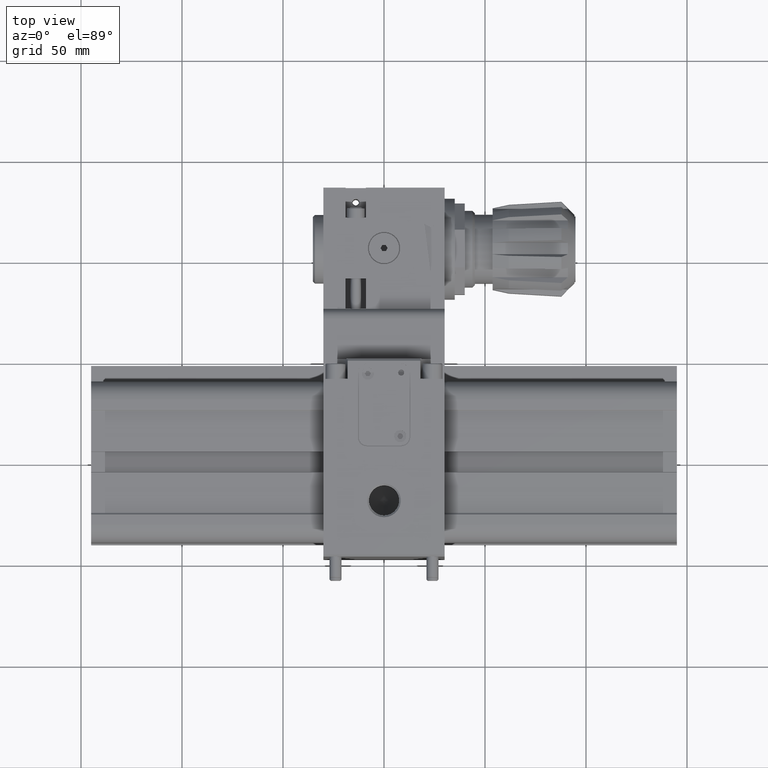
[diagram: clean part render]
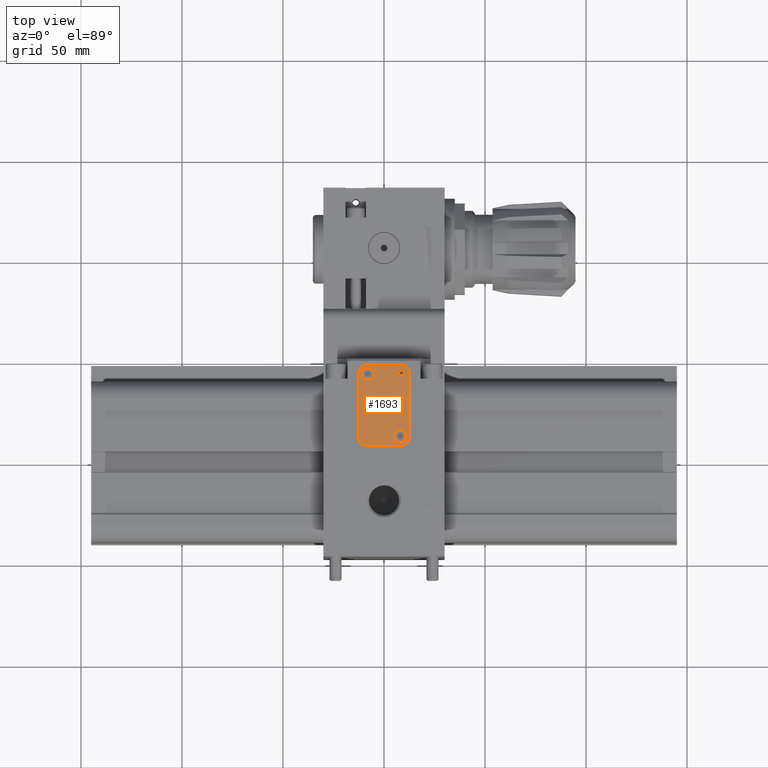
[diagram: same view with one face highlighted and labeled with its STEP entity id]
A machine part, top view. The second image highlights one B-rep face of the part: STEP entity #1693.
In plain terms, the highlighted planar face has unit normal (0, 0, -1).
Its self-contained STEP definition (entity closure, byte-faithful):
#1693 = ADVANCED_FACE( '', ( #3714, #3715, #3716, #3717 ), #3718, .F. );
#3714 = FACE_BOUND( '', #6097, .T. );
#3715 = FACE_BOUND( '', #6098, .T. );
#3716 = FACE_OUTER_BOUND( '', #6099, .T. );
#3717 = FACE_BOUND( '', #6100, .T. );
#3718 = PLANE( '', #6101 );
#6097 = EDGE_LOOP( '', ( #10482 ) );
#6098 = EDGE_LOOP( '', ( #10483 ) );
#6099 = EDGE_LOOP( '', ( #10484, #10485, #10486, #10487, #10488, #10489, #10490, #10491 ) );
#6100 = EDGE_LOOP( '', ( #10492 ) );
#6101 = AXIS2_PLACEMENT_3D( '', #10493, #10494, #10495 );
#10482 = ORIENTED_EDGE( '', *, *, #13351, .F. );
#10483 = ORIENTED_EDGE( '', *, *, #13521, .F. );
#10484 = ORIENTED_EDGE( '', *, *, #14868, .T. );
#10485 = ORIENTED_EDGE( '', *, *, #14339, .T. );
#10486 = ORIENTED_EDGE( '', *, *, #13329, .T. );
#10487 = ORIENTED_EDGE( '', *, *, #14869, .T. );
#10488 = ORIENTED_EDGE( '', *, *, #14139, .T. );
#10489 = ORIENTED_EDGE( '', *, *, #14870, .T. );
#10490 = ORIENTED_EDGE( '', *, *, #14134, .T. );
#10491 = ORIENTED_EDGE( '', *, *, #14694, .T. );
#10492 = ORIENTED_EDGE( '', *, *, #14871, .F. );
#10493 = CARTESIAN_POINT( '', ( 30.0000000000000, 50.0000000000000, 49.0000000000000 ) );
#10494 = DIRECTION( '', ( 0.000000000000000, 0.000000000000000, -1.00000000000000 ) );
#10495 = DIRECTION( '', ( -1.00000000000000, 0.000000000000000, 0.000000000000000 ) );
#13329 = EDGE_CURVE( '', #15748, #15749, #15750, .T. );
#13351 = EDGE_CURVE( '', #15786, #15786, #15787, .T. );
#13521 = EDGE_CURVE( '', #16082, #16082, #16083, .T. );
#14134 = EDGE_CURVE( '', #17089, #17090, #17091, .T. );
#14139 = EDGE_CURVE( '', #17098, #17099, #17100, .T. );
#14339 = EDGE_CURVE( '', #17402, #15748, #17403, .T. );
#14694 = EDGE_CURVE( '', #17090, #17918, #17919, .T. );
#14868 = EDGE_CURVE( '', #17918, #17402, #18183, .T. );
#14869 = EDGE_CURVE( '', #15749, #17098, #18184, .T. );
#14870 = EDGE_CURVE( '', #17099, #17089, #18185, .T. );
#14871 = EDGE_CURVE( '', #18186, #18186, #18187, .T. );
#15748 = VERTEX_POINT( '', #19278 );
#15749 = VERTEX_POINT( '', #19279 );
#15750 = LINE( '', #19280, #19281 );
#15786 = VERTEX_POINT( '', #19327 );
#15787 = CIRCLE( '', #19328, 3.00000000000000 );
#16082 = VERTEX_POINT( '', #19740 );
#16083 = CIRCLE( '', #19741, 1.50000000000000 );
#17089 = VERTEX_POINT( '', #21149 );
#17090 = VERTEX_POINT( '', #21150 );
#17091 = LINE( '', #21151, #21152 );
#17098 = VERTEX_POINT( '', #21162 );
#17099 = VERTEX_POINT( '', #21163 );
#17100 = LINE( '', #21164, #21165 );
#17402 = VERTEX_POINT( '', #21587 );
#17403 = CIRCLE( '', #21588, 4.00000000000000 );
#17918 = VERTEX_POINT( '', #22298 );
#17919 = CIRCLE( '', #22299, 4.00000000000000 );
#18183 = LINE( '', #22667, #22668 );
#18184 = CIRCLE( '', #22669, 4.00000000000000 );
#18185 = CIRCLE( '', #22670, 4.00000000000000 );
#18186 = VERTEX_POINT( '', #22671 );
#18187 = CIRCLE( '', #22672, 3.00000000000000 );
#19278 = CARTESIAN_POINT( '', ( -8.50000000000000, 8.00000000000000, 49.0000000000000 ) );
#19279 = CARTESIAN_POINT( '', ( 8.50000000000000, 8.00000000000000, 49.0000000000000 ) );
#19280 = CARTESIAN_POINT( '', ( -8.50000000000000, 8.00000000000000, 49.0000000000000 ) );
#19281 = VECTOR( '', #23858, 1000.00000000000 );
#19327 = CARTESIAN_POINT( '', ( -5.00000000000000, 43.5000000000000, 49.0000000000000 ) );
#19328 = AXIS2_PLACEMENT_3D( '', #23887, #23888, #23889 );
#19740 = CARTESIAN_POINT( '', ( 10.0000000000000, 44.0000000000000, 49.0000000000000 ) );
#19741 = AXIS2_PLACEMENT_3D( '', #24082, #24083, #24084 );
#21149 = CARTESIAN_POINT( '', ( 8.50000000000000, 48.0000000000000, 49.0000000000000 ) );
#21150 = CARTESIAN_POINT( '', ( -8.50000000000000, 48.0000000000000, 49.0000000000000 ) );
#21151 = CARTESIAN_POINT( '', ( 8.50000000000000, 48.0000000000000, 49.0000000000000 ) );
#21152 = VECTOR( '', #24735, 1000.00000000000 );
#21162 = CARTESIAN_POINT( '', ( 12.5000000000000, 12.0000000000000, 49.0000000000000 ) );
#21163 = CARTESIAN_POINT( '', ( 12.5000000000000, 44.0000000000000, 49.0000000000000 ) );
#21164 = CARTESIAN_POINT( '', ( 12.5000000000000, 12.0000000000000, 49.0000000000000 ) );
#21165 = VECTOR( '', #24739, 1000.00000000000 );
#21587 = CARTESIAN_POINT( '', ( -12.5000000000000, 12.0000000000000, 49.0000000000000 ) );
#21588 = AXIS2_PLACEMENT_3D( '', #24981, #24982, #24983 );
#22298 = CARTESIAN_POINT( '', ( -12.5000000000000, 44.0000000000000, 49.0000000000000 ) );
#22299 = AXIS2_PLACEMENT_3D( '', #25377, #25378, #25379 );
#22667 = CARTESIAN_POINT( '', ( -12.5000000000000, 44.0000000000000, 49.0000000000000 ) );
#22668 = VECTOR( '', #25613, 1000.00000000000 );
#22669 = AXIS2_PLACEMENT_3D( '', #25614, #25615, #25616 );
#22670 = AXIS2_PLACEMENT_3D( '', #25617, #25618, #25619 );
#22671 = CARTESIAN_POINT( '', ( 11.0000000000000, 12.5000000000000, 49.0000000000000 ) );
#22672 = AXIS2_PLACEMENT_3D( '', #25620, #25621, #25622 );
#23858 = DIRECTION( '', ( 1.00000000000000, 0.000000000000000, 0.000000000000000 ) );
#23887 = CARTESIAN_POINT( '', ( -8.00000000000000, 43.5000000000000, 49.0000000000000 ) );
#23888 = DIRECTION( '', ( 0.000000000000000, 0.000000000000000, 1.00000000000000 ) );
#23889 = DIRECTION( '', ( 1.00000000000000, 0.000000000000000, 0.000000000000000 ) );
#24082 = CARTESIAN_POINT( '', ( 8.50000000000000, 44.0000000000000, 49.0000000000000 ) );
#24083 = DIRECTION( '', ( 0.000000000000000, 0.000000000000000, 1.00000000000000 ) );
#24084 = DIRECTION( '', ( 1.00000000000000, 0.000000000000000, 0.000000000000000 ) );
#24735 = DIRECTION( '', ( -1.00000000000000, 0.000000000000000, 0.000000000000000 ) );
#24739 = DIRECTION( '', ( 0.000000000000000, 1.00000000000000, 0.000000000000000 ) );
#24981 = CARTESIAN_POINT( '', ( -8.50000000000000, 12.0000000000000, 49.0000000000000 ) );
#24982 = DIRECTION( '', ( 0.000000000000000, 0.000000000000000, 1.00000000000000 ) );
#24983 = DIRECTION( '', ( 1.00000000000000, 0.000000000000000, 0.000000000000000 ) );
#25377 = CARTESIAN_POINT( '', ( -8.50000000000000, 44.0000000000000, 49.0000000000000 ) );
#25378 = DIRECTION( '', ( 0.000000000000000, 0.000000000000000, 1.00000000000000 ) );
#25379 = DIRECTION( '', ( 1.00000000000000, 0.000000000000000, 0.000000000000000 ) );
#25613 = DIRECTION( '', ( 0.000000000000000, -1.00000000000000, 0.000000000000000 ) );
#25614 = CARTESIAN_POINT( '', ( 8.50000000000000, 12.0000000000000, 49.0000000000000 ) );
#25615 = DIRECTION( '', ( 0.000000000000000, 0.000000000000000, 1.00000000000000 ) );
#25616 = DIRECTION( '', ( 1.00000000000000, 0.000000000000000, 0.000000000000000 ) );
#25617 = CARTESIAN_POINT( '', ( 8.50000000000000, 44.0000000000000, 49.0000000000000 ) );
#25618 = DIRECTION( '', ( 0.000000000000000, 0.000000000000000, 1.00000000000000 ) );
#25619 = DIRECTION( '', ( 1.00000000000000, 0.000000000000000, 0.000000000000000 ) );
#25620 = CARTESIAN_POINT( '', ( 8.00000000000000, 12.5000000000000, 49.0000000000000 ) );
#25621 = DIRECTION( '', ( 0.000000000000000, 0.000000000000000, 1.00000000000000 ) );
#25622 = DIRECTION( '', ( 1.00000000000000, 0.000000000000000, 0.000000000000000 ) );